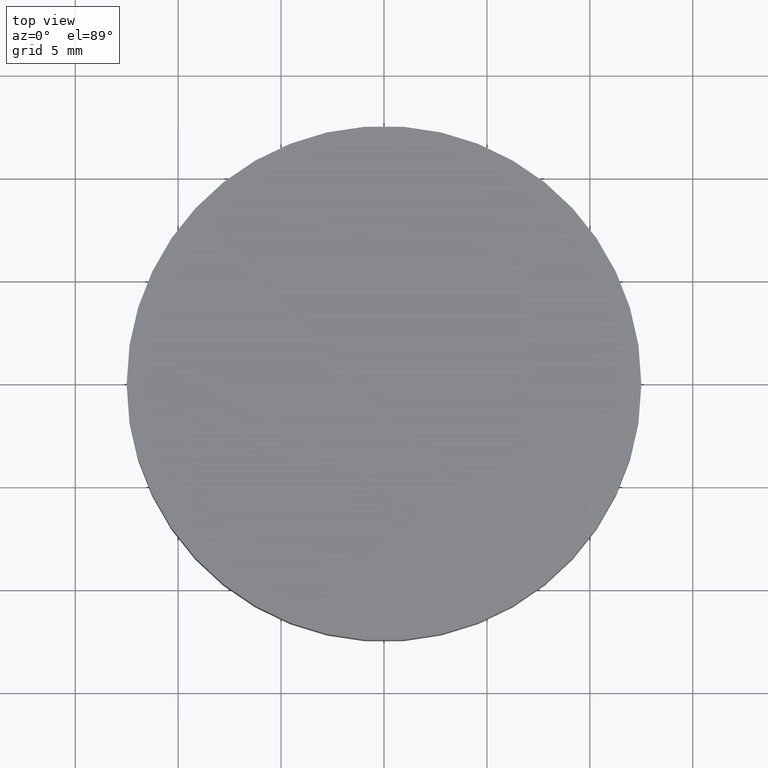
[diagram: clean part render]
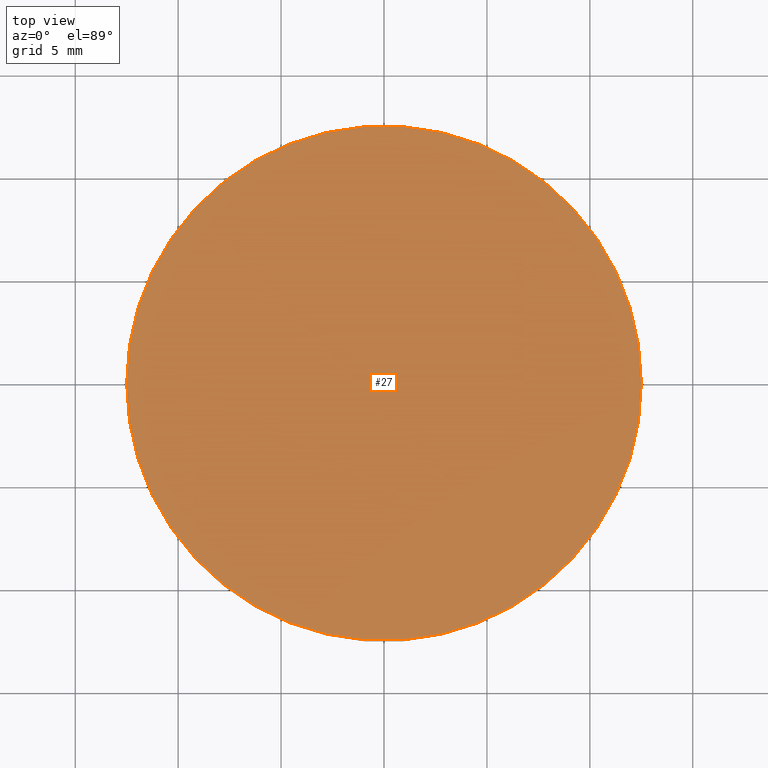
[diagram: same view with one face highlighted and labeled with its STEP entity id]
A machine part, top view. The second image highlights one B-rep face of the part: STEP entity #27.
In plain terms, the highlighted planar face has unit normal (0, 0, 1).
Its self-contained STEP definition (entity closure, byte-faithful):
#2 = CARTESIAN_POINT ( 'NONE',  ( 0.0000000000000000000, 0.0000000000000000000, 4.000000000000000000 ) ) ;
#3 = CARTESIAN_POINT ( 'NONE',  ( 0.0000000000000000000, 0.0000000000000000000, 4.000000000000000000 ) ) ;
#8 = EDGE_CURVE ( 'NONE', #90, #122, #116, .T. ) ;
#11 = CARTESIAN_POINT ( 'NONE',  ( 12.50000000000000000, 1.530808498934191500E-015, 4.000000000000000000 ) ) ;
#13 = DIRECTION ( 'NONE',  ( 1.000000000000000000, 0.0000000000000000000, 0.0000000000000000000 ) ) ;
#14 = CARTESIAN_POINT ( 'NONE',  ( -12.50000000000000000, 0.0000000000000000000, 4.000000000000000000 ) ) ;
#20 = AXIS2_PLACEMENT_3D ( 'NONE', #3, #113, #50 ) ;
#21 = CIRCLE ( 'NONE', #20, 12.50000000000000000 ) ;
#22 = AXIS2_PLACEMENT_3D ( 'NONE', #2, #103, #58 ) ;
#23 = ORIENTED_EDGE ( 'NONE', *, *, #8, .T. ) ;
#27 = ADVANCED_FACE ( 'NONE', ( #138 ), #133, .T. ) ;
#28 = EDGE_LOOP ( 'NONE', ( #75, #23 ) ) ;
#48 = CARTESIAN_POINT ( 'NONE',  ( 0.0000000000000000000, 0.0000000000000000000, 4.000000000000000000 ) ) ;
#50 = DIRECTION ( 'NONE',  ( 1.000000000000000000, 0.0000000000000000000, 0.0000000000000000000 ) ) ;
#58 = DIRECTION ( 'NONE',  ( 1.000000000000000000, 0.0000000000000000000, -0.0000000000000000000 ) ) ;
#64 = EDGE_CURVE ( 'NONE', #122, #90, #21, .T. ) ;
#71 = AXIS2_PLACEMENT_3D ( 'NONE', #48, #139, #13 ) ;
#75 = ORIENTED_EDGE ( 'NONE', *, *, #64, .T. ) ;
#90 = VERTEX_POINT ( 'NONE', #11 ) ;
#103 = DIRECTION ( 'NONE',  ( 0.0000000000000000000, 0.0000000000000000000, 1.000000000000000000 ) ) ;
#113 = DIRECTION ( 'NONE',  ( 0.0000000000000000000, 0.0000000000000000000, 1.000000000000000000 ) ) ;
#116 = CIRCLE ( 'NONE', #71, 12.50000000000000000 ) ;
#122 = VERTEX_POINT ( 'NONE', #14 ) ;
#133 = PLANE ( 'NONE',  #22 ) ;
#138 = FACE_OUTER_BOUND ( 'NONE', #28, .T. ) ;
#139 = DIRECTION ( 'NONE',  ( 0.0000000000000000000, 0.0000000000000000000, 1.000000000000000000 ) ) ;